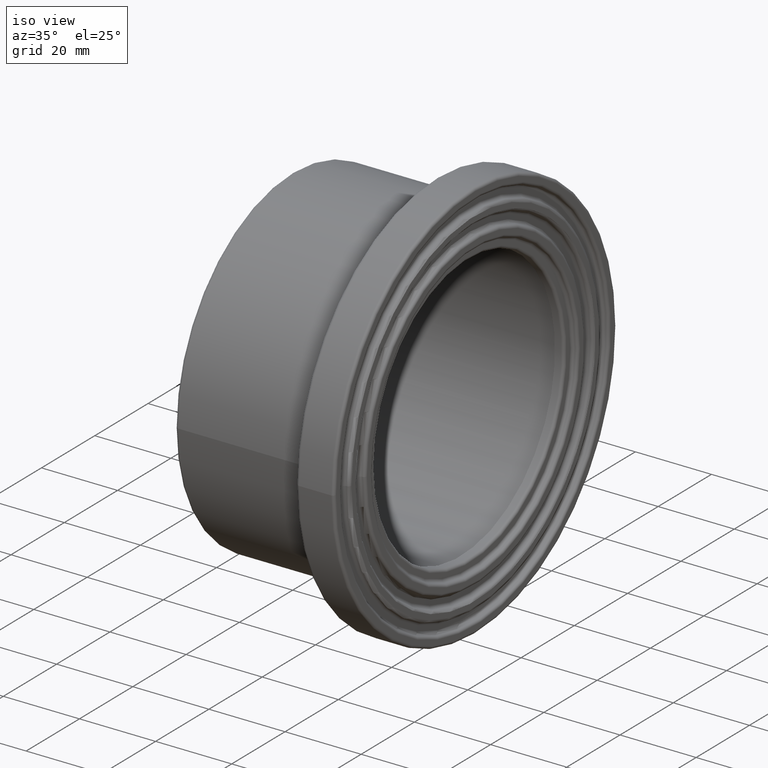
[diagram: clean part render]
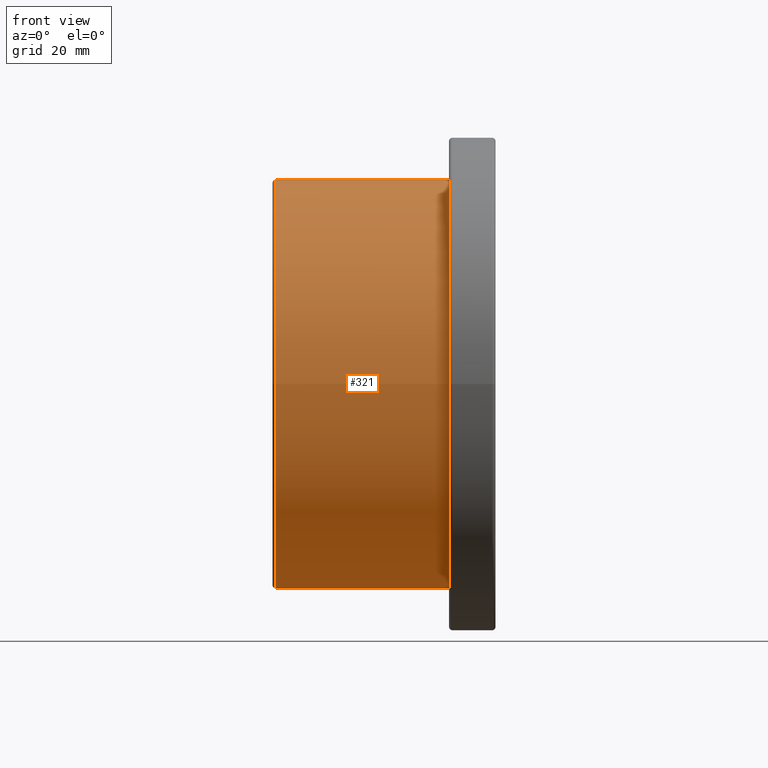
[diagram: tour spotlight — one face highlighted and labeled with its STEP entity id]
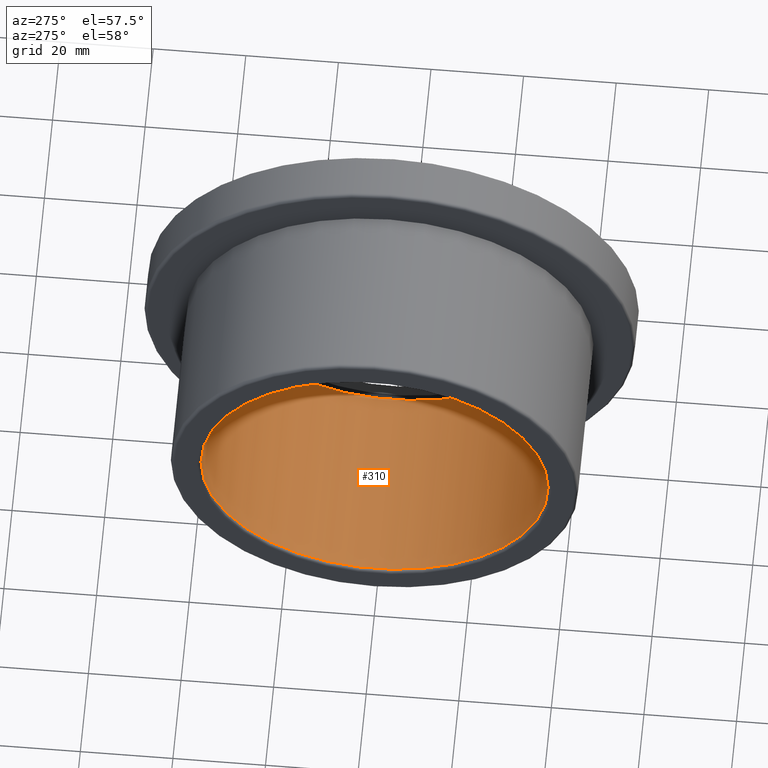
[diagram: tour spotlight — one face highlighted and labeled with its STEP entity id]
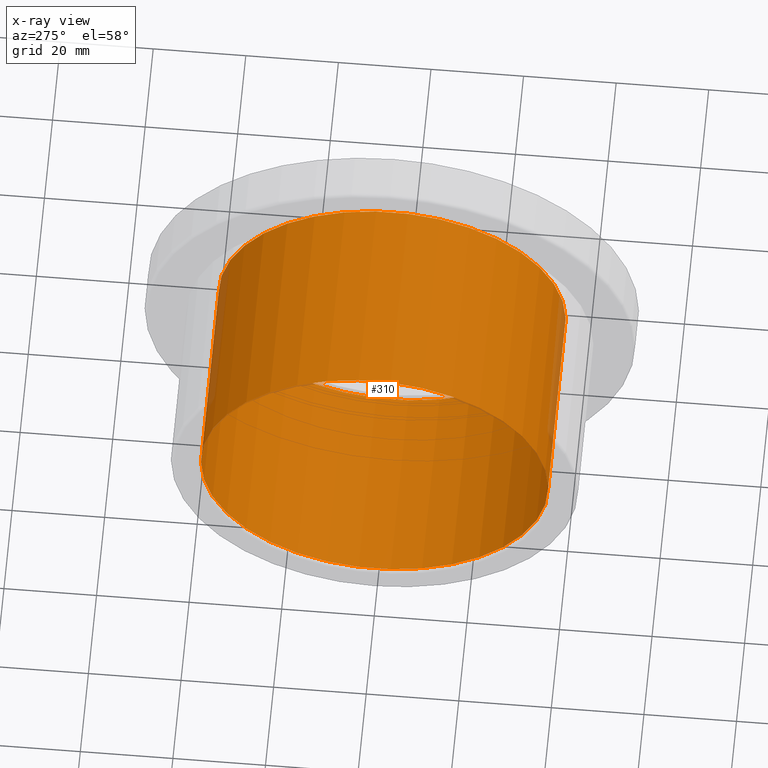
[diagram: x-ray of the same camera — body ghosted, this tour face saturated]
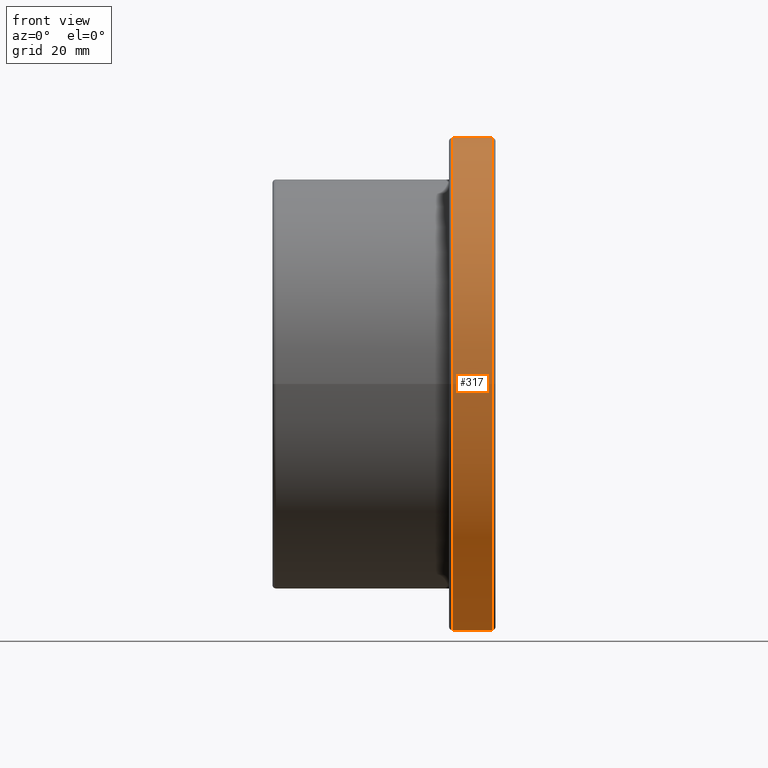
[diagram: tour spotlight — one face highlighted and labeled with its STEP entity id]
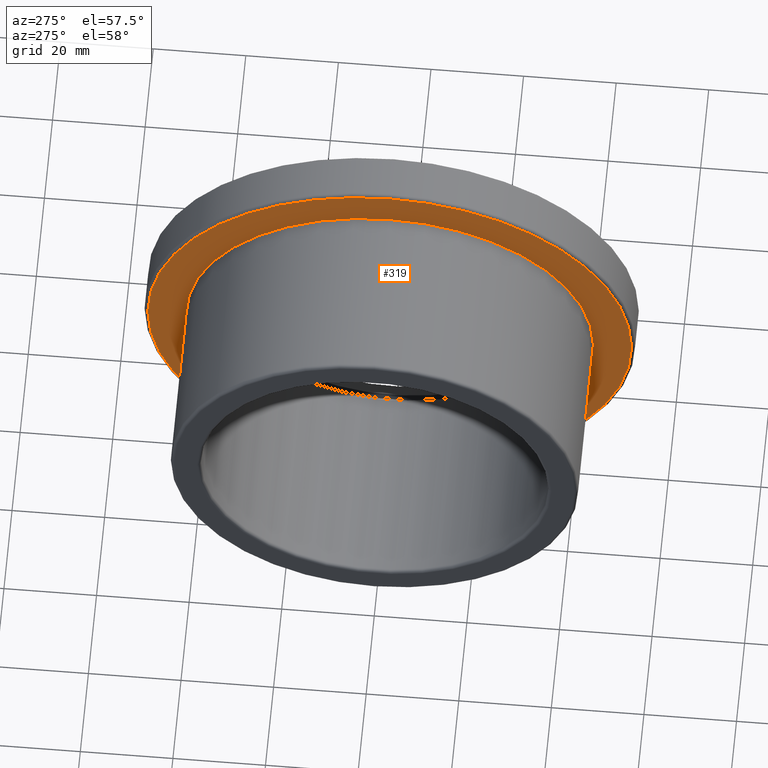
[diagram: tour spotlight — one face highlighted and labeled with its STEP entity id]
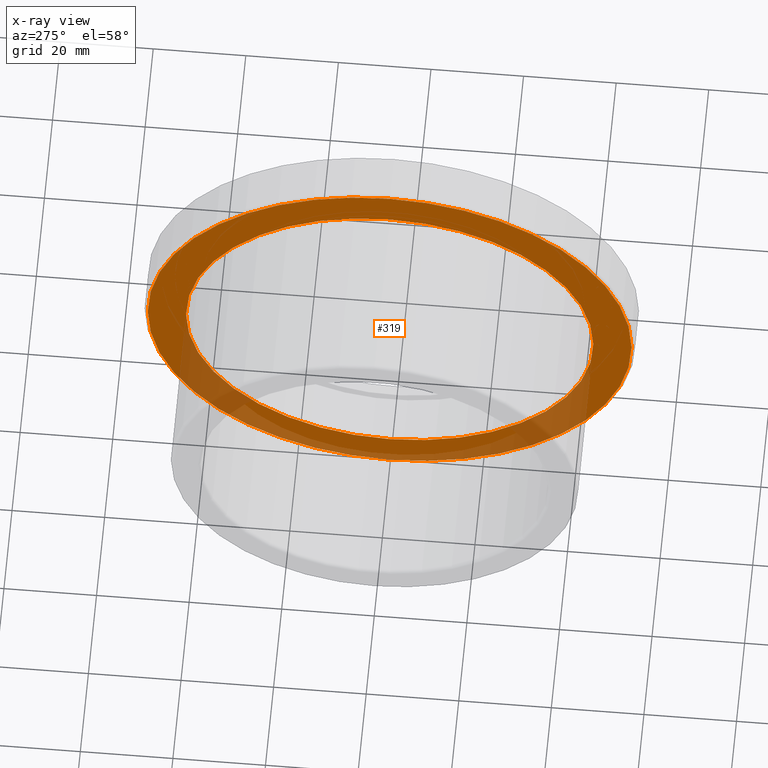
[diagram: x-ray of the same camera — body ghosted, this tour face saturated]
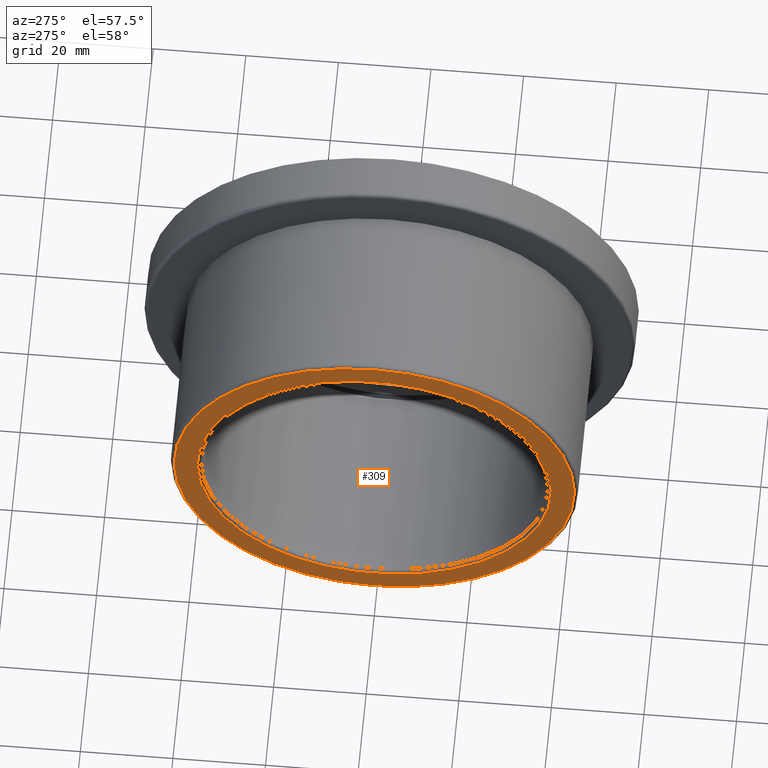
[diagram: tour spotlight — one face highlighted and labeled with its STEP entity id]
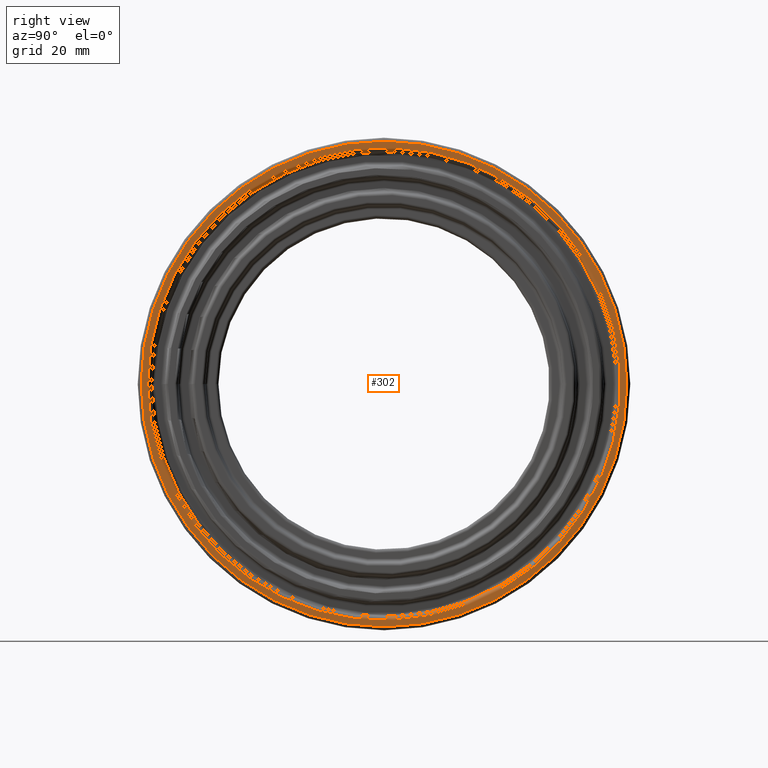
[diagram: tour spotlight — one face highlighted and labeled with its STEP entity id]
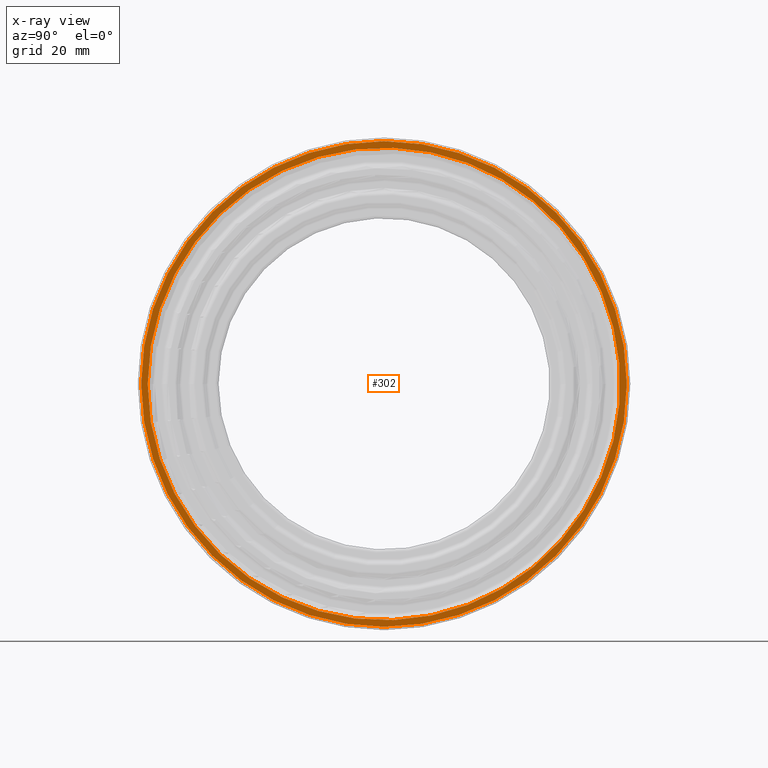
[diagram: x-ray of the same camera — body ghosted, this tour face saturated]
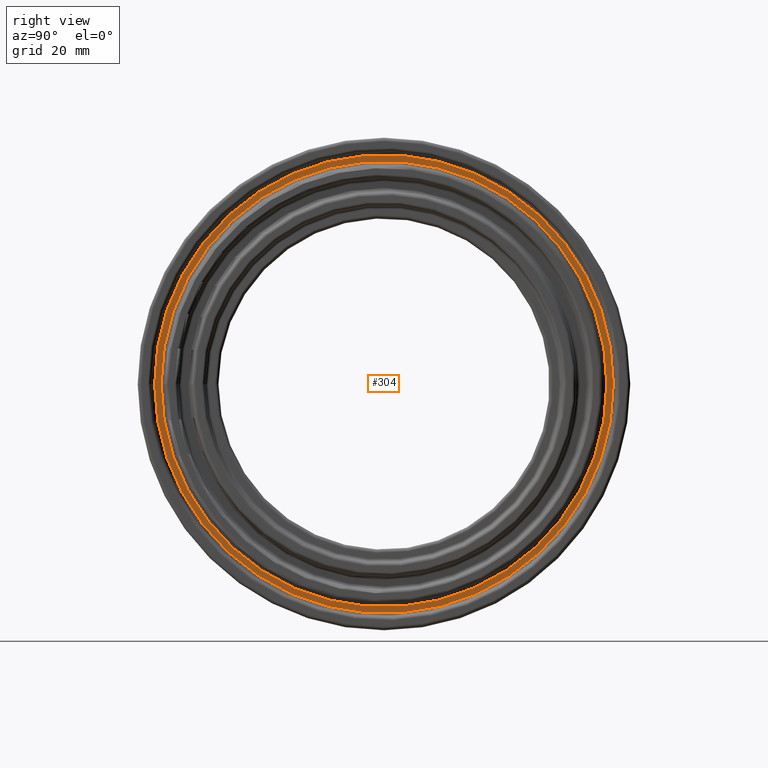
[diagram: tour spotlight — one face highlighted and labeled with its STEP entity id]
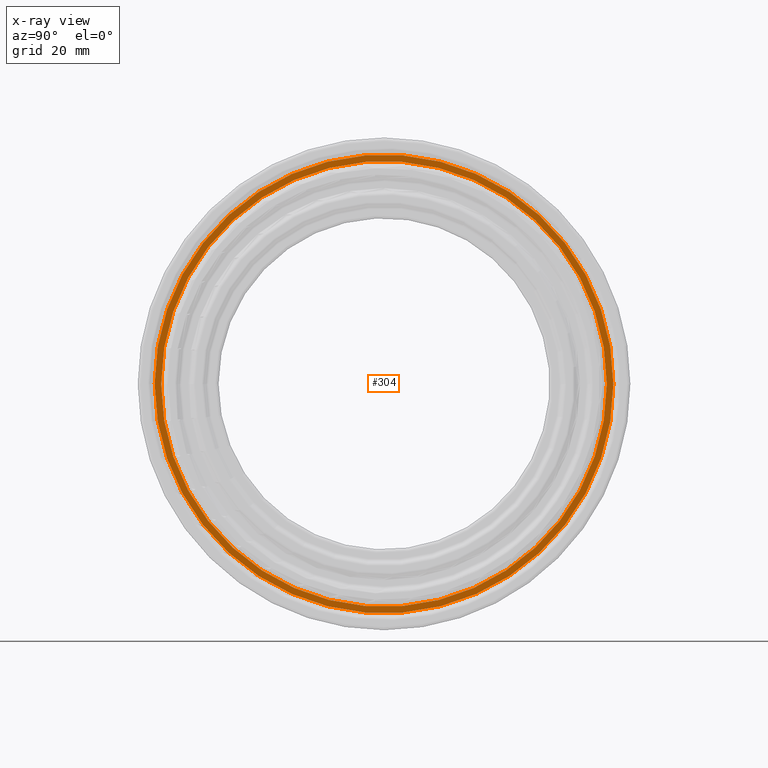
[diagram: x-ray of the same camera — body ghosted, this tour face saturated]
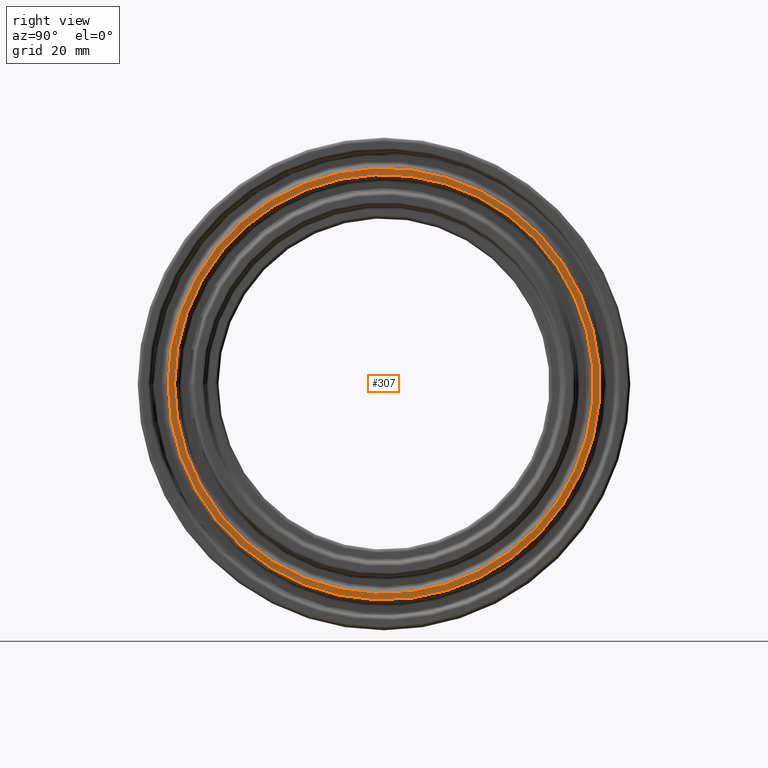
[diagram: tour spotlight — one face highlighted and labeled with its STEP entity id]
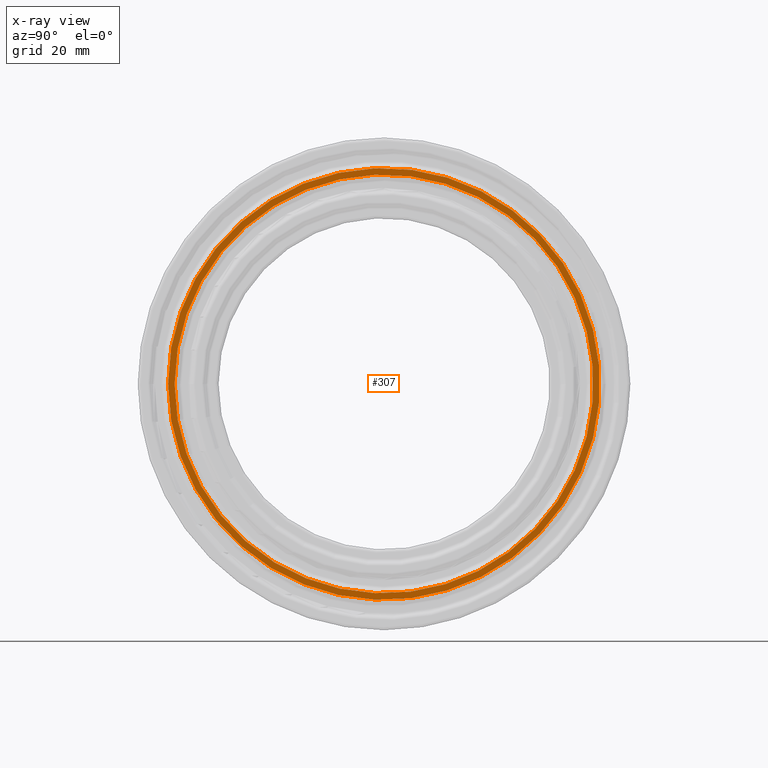
[diagram: x-ray of the same camera — body ghosted, this tour face saturated]
A machine part: a face-by-face anatomy tour. The part has 28 B-rep faces; the first image is the clean iso view, then the 8 largest visible faces are spotlighted one at a time (largest first), each with its STEP entity span.

Face 1 — front view, entity #321. In plain terms, the highlighted cylindrical surface (bore or boss wall) has radius 44 mm, axis along (-1, 0, 0).
Definition (entity closure, byte-faithful):
#18=CYLINDRICAL_SURFACE('',#379,44.);
#54=FACE_BOUND('',#137,.T.);
#82=FACE_OUTER_BOUND('',#136,.T.);
#136=EDGE_LOOP('',(#276));
#137=EDGE_LOOP('',(#277));
#166=CIRCLE('',#376,44.);
#167=CIRCLE('',#378,44.);
#194=VERTEX_POINT('',#573);
#195=VERTEX_POINT('',#576);
#222=EDGE_CURVE('',#194,#194,#166,.T.);
#223=EDGE_CURVE('',#195,#195,#167,.T.);
#276=ORIENTED_EDGE('',*,*,#222,.T.);
#277=ORIENTED_EDGE('',*,*,#223,.F.);
#321=ADVANCED_FACE('',(#82,#54),#18,.T.);
#376=AXIS2_PLACEMENT_3D('',#574,#485,#486);
#378=AXIS2_PLACEMENT_3D('',#577,#489,#490);
#379=AXIS2_PLACEMENT_3D('',#578,#491,#492);
#485=DIRECTION('center_axis',(-1.,0.,0.));
#486=DIRECTION('ref_axis',(0.,0.,1.));
#489=DIRECTION('center_axis',(-1.,0.,0.));
#490=DIRECTION('ref_axis',(0.,1.,6.12323399573677E-17));
#491=DIRECTION('center_axis',(-1.,0.,0.));
#492=DIRECTION('ref_axis',(0.,-1.,0.));
#573=CARTESIAN_POINT('',(38.,-44.,0.));
#574=CARTESIAN_POINT('Origin',(38.,0.,0.));
#576=CARTESIAN_POINT('',(0.75,-44.,2.69422295812418E-15));
#577=CARTESIAN_POINT('Origin',(0.75,0.,0.));
#578=CARTESIAN_POINT('Origin',(19.,0.,0.));

Face 2 — auxiliary view, entity #310. An x-ray twin of the same camera follows (body ghosted, this face saturated) — the face is partly hidden behind the body. In plain terms, the highlighted cylindrical surface (bore or boss wall) has radius 37.5 mm, axis along (-1, 0, 0).
Definition (entity closure, byte-faithful):
#16=CYLINDRICAL_SURFACE('',#358,37.5);
#43=FACE_BOUND('',#115,.T.);
#71=FACE_OUTER_BOUND('',#114,.T.);
#114=EDGE_LOOP('',(#254));
#115=EDGE_LOOP('',(#255));
#156=CIRCLE('',#355,37.5);
#158=CIRCLE('',#359,37.5);
#184=VERTEX_POINT('',#542);
#186=VERTEX_POINT('',#548);
#212=EDGE_CURVE('',#184,#184,#156,.T.);
#214=EDGE_CURVE('',#186,#186,#158,.T.);
#254=ORIENTED_EDGE('',*,*,#214,.F.);
#255=ORIENTED_EDGE('',*,*,#212,.F.);
#310=ADVANCED_FACE('',(#71,#43),#16,.F.);
#355=AXIS2_PLACEMENT_3D('',#543,#443,#444);
#358=AXIS2_PLACEMENT_3D('',#547,#449,#450);
#359=AXIS2_PLACEMENT_3D('',#549,#451,#452);
#443=DIRECTION('center_axis',(1.,0.,0.));
#444=DIRECTION('ref_axis',(0.,1.,6.12323399573677E-17));
#449=DIRECTION('center_axis',(-1.,0.,0.));
#450=DIRECTION('ref_axis',(0.,-1.,0.));
#451=DIRECTION('center_axis',(-1.,0.,0.));
#452=DIRECTION('ref_axis',(0.,0.,1.));
#542=CARTESIAN_POINT('',(0.750000000000002,-37.5,-6.88863824520386E-15));
#543=CARTESIAN_POINT('Origin',(0.750000000000002,0.,0.));
#547=CARTESIAN_POINT('Origin',(22.,0.,0.));
#548=CARTESIAN_POINT('',(44.,-37.5,0.));
#549=CARTESIAN_POINT('Origin',(44.,0.,0.));

Face 3 — front view, entity #317. In plain terms, the highlighted cylindrical surface (bore or boss wall) has radius 53 mm, axis along (-1, 0, 0).
Definition (entity closure, byte-faithful):
#17=CYLINDRICAL_SURFACE('',#371,53.);
#50=FACE_BOUND('',#129,.T.);
#78=FACE_OUTER_BOUND('',#128,.T.);
#128=EDGE_LOOP('',(#268));
#129=EDGE_LOOP('',(#269));
#163=CIRCLE('',#370,53.);
#164=CIRCLE('',#372,53.);
#191=VERTEX_POINT('',#564);
#192=VERTEX_POINT('',#567);
#219=EDGE_CURVE('',#191,#191,#163,.T.);
#220=EDGE_CURVE('',#192,#192,#164,.T.);
#268=ORIENTED_EDGE('',*,*,#220,.F.);
#269=ORIENTED_EDGE('',*,*,#219,.F.);
#317=ADVANCED_FACE('',(#78,#50),#17,.T.);
#370=AXIS2_PLACEMENT_3D('',#565,#473,#474);
#371=AXIS2_PLACEMENT_3D('',#566,#475,#476);
#372=AXIS2_PLACEMENT_3D('',#568,#477,#478);
#473=DIRECTION('center_axis',(1.,0.,0.));
#474=DIRECTION('ref_axis',(0.,1.,6.12323399573677E-17));
#475=DIRECTION('center_axis',(-1.,0.,0.));
#476=DIRECTION('ref_axis',(0.,-1.,0.));
#477=DIRECTION('center_axis',(-1.,0.,0.));
#478=DIRECTION('ref_axis',(0.,1.,6.12323399573677E-17));
#564=CARTESIAN_POINT('',(47.25,-53.,-9.73594205322146E-15));
#565=CARTESIAN_POINT('Origin',(47.25,0.,0.));
#566=CARTESIAN_POINT('Origin',(43.,0.,0.));
#567=CARTESIAN_POINT('',(38.75,-53.,3.24531401774049E-15));
#568=CARTESIAN_POINT('Origin',(38.75,0.,0.));

Face 4 — auxiliary view, entity #319. An x-ray twin of the same camera follows (body ghosted, this face saturated) — the face is partly hidden behind the body. In plain terms, the highlighted planar face has unit normal (-1, 0, 0).
Definition (entity closure, byte-faithful):
#26=PLANE('',#375);
#52=FACE_BOUND('',#133,.T.);
#80=FACE_OUTER_BOUND('',#132,.T.);
#132=EDGE_LOOP('',(#272));
#133=EDGE_LOOP('',(#273));
#165=CIRCLE('',#374,52.25);
#166=CIRCLE('',#376,44.);
#193=VERTEX_POINT('',#570);
#194=VERTEX_POINT('',#573);
#221=EDGE_CURVE('',#193,#193,#165,.T.);
#222=EDGE_CURVE('',#194,#194,#166,.T.);
#272=ORIENTED_EDGE('',*,*,#221,.F.);
#273=ORIENTED_EDGE('',*,*,#222,.F.);
#319=ADVANCED_FACE('',(#80,#52),#26,.T.);
#374=AXIS2_PLACEMENT_3D('',#571,#481,#482);
#375=AXIS2_PLACEMENT_3D('',#572,#483,#484);
#376=AXIS2_PLACEMENT_3D('',#574,#485,#486);
#481=DIRECTION('center_axis',(1.,0.,0.));
#482=DIRECTION('ref_axis',(0.,1.,6.12323399573677E-17));
#483=DIRECTION('center_axis',(-1.,0.,0.));
#484=DIRECTION('ref_axis',(0.,0.,1.));
#485=DIRECTION('center_axis',(-1.,0.,0.));
#486=DIRECTION('ref_axis',(0.,0.,1.));
#570=CARTESIAN_POINT('',(38.,-52.25,-9.59816928831738E-15));
#571=CARTESIAN_POINT('Origin',(38.,0.,0.));
#572=CARTESIAN_POINT('Origin',(38.,-44.,0.));
#573=CARTESIAN_POINT('',(38.,-44.,0.));
#574=CARTESIAN_POINT('Origin',(38.,0.,0.));

Face 5 — auxiliary view, entity #309. In plain terms, the highlighted planar face has unit normal (-1, 0, 0).
Definition (entity closure, byte-faithful):
#24=PLANE('',#356);
#42=FACE_BOUND('',#113,.T.);
#70=FACE_OUTER_BOUND('',#112,.T.);
#112=EDGE_LOOP('',(#252));
#113=EDGE_LOOP('',(#253));
#155=CIRCLE('',#354,38.25);
#157=CIRCLE('',#357,43.25);
#183=VERTEX_POINT('',#540);
#185=VERTEX_POINT('',#545);
#211=EDGE_CURVE('',#183,#183,#155,.T.);
#213=EDGE_CURVE('',#185,#185,#157,.T.);
#252=ORIENTED_EDGE('',*,*,#213,.F.);
#253=ORIENTED_EDGE('',*,*,#211,.F.);
#309=ADVANCED_FACE('',(#70,#42),#24,.T.);
#354=AXIS2_PLACEMENT_3D('',#541,#441,#442);
#356=AXIS2_PLACEMENT_3D('',#544,#445,#446);
#357=AXIS2_PLACEMENT_3D('',#546,#447,#448);
#441=DIRECTION('center_axis',(-1.,0.,0.));
#442=DIRECTION('ref_axis',(0.,1.,6.12323399573677E-17));
#445=DIRECTION('center_axis',(-1.,0.,0.));
#446=DIRECTION('ref_axis',(0.,0.,1.));
#447=DIRECTION('center_axis',(1.,0.,0.));
#448=DIRECTION('ref_axis',(0.,1.,6.12323399573677E-17));
#540=CARTESIAN_POINT('',(0.,-38.25,2.34213700336931E-15));
#541=CARTESIAN_POINT('Origin',(0.,0.,0.));
#544=CARTESIAN_POINT('Origin',(0.,-37.5,0.));
#545=CARTESIAN_POINT('',(0.,-43.25,-7.94489610946845E-15));
#546=CARTESIAN_POINT('Origin',(0.,0.,0.));

Face 6 — right view, entity #302. An x-ray twin of the same camera follows (body ghosted, this face saturated) — the face is partly hidden behind the body. In plain terms, the highlighted planar face has unit normal (1, 0, 0).
Definition (entity closure, byte-faithful):
#21=PLANE('',#341);
#35=FACE_BOUND('',#99,.T.);
#63=FACE_OUTER_BOUND('',#98,.T.);
#98=EDGE_LOOP('',(#238));
#99=EDGE_LOOP('',(#239));
#148=CIRCLE('',#340,50.8541666666667);
#149=CIRCLE('',#342,52.25);
#176=VERTEX_POINT('',#519);
#177=VERTEX_POINT('',#522);
#204=EDGE_CURVE('',#176,#176,#148,.T.);
#205=EDGE_CURVE('',#177,#177,#149,.T.);
#238=ORIENTED_EDGE('',*,*,#205,.F.);
#239=ORIENTED_EDGE('',*,*,#204,.F.);
#302=ADVANCED_FACE('',(#63,#35),#21,.T.);
#340=AXIS2_PLACEMENT_3D('',#520,#413,#414);
#341=AXIS2_PLACEMENT_3D('',#521,#415,#416);
#342=AXIS2_PLACEMENT_3D('',#523,#417,#418);
#413=DIRECTION('center_axis',(1.,0.,0.));
#414=DIRECTION('ref_axis',(0.,1.,6.12323399573677E-17));
#415=DIRECTION('center_axis',(1.,0.,0.));
#416=DIRECTION('ref_axis',(0.,0.,-1.));
#417=DIRECTION('center_axis',(-1.,0.,0.));
#418=DIRECTION('ref_axis',(0.,1.,6.12323399573677E-17));
#519=CARTESIAN_POINT('',(48.,-50.8541666666667,-9.34175886474591E-15));
#520=CARTESIAN_POINT('Origin',(48.,0.,0.));
#521=CARTESIAN_POINT('Origin',(48.,-53.,0.));
#522=CARTESIAN_POINT('',(48.,-52.25,3.19938976277246E-15));
#523=CARTESIAN_POINT('Origin',(48.,0.,0.));

Face 7 — right view, entity #304. An x-ray twin of the same camera follows (body ghosted, this face saturated) — the face is partly hidden behind the body. In plain terms, the highlighted planar face has unit normal (1, 0, 0).
Definition (entity closure, byte-faithful):
#22=PLANE('',#345);
#37=FACE_BOUND('',#103,.T.);
#65=FACE_OUTER_BOUND('',#102,.T.);
#102=EDGE_LOOP('',(#242));
#103=EDGE_LOOP('',(#243));
#150=CIRCLE('',#344,49.3541666666667);
#151=CIRCLE('',#346,47.9583333333333);
#178=VERTEX_POINT('',#525);
#179=VERTEX_POINT('',#528);
#206=EDGE_CURVE('',#178,#178,#150,.T.);
#207=EDGE_CURVE('',#179,#179,#151,.T.);
#242=ORIENTED_EDGE('',*,*,#206,.F.);
#243=ORIENTED_EDGE('',*,*,#207,.F.);
#304=ADVANCED_FACE('',(#65,#37),#22,.T.);
#344=AXIS2_PLACEMENT_3D('',#526,#421,#422);
#345=AXIS2_PLACEMENT_3D('',#527,#423,#424);
#346=AXIS2_PLACEMENT_3D('',#529,#425,#426);
#421=DIRECTION('center_axis',(-1.,0.,0.));
#422=DIRECTION('ref_axis',(0.,1.,6.12323399573677E-17));
#423=DIRECTION('center_axis',(1.,0.,0.));
#424=DIRECTION('ref_axis',(0.,0.,-1.));
#425=DIRECTION('center_axis',(1.,0.,0.));
#426=DIRECTION('ref_axis',(0.,1.,6.12323399573677E-17));
#525=CARTESIAN_POINT('',(46.5,-49.3541666666667,3.02207111164592E-15));
#526=CARTESIAN_POINT('Origin',(46.5,0.,0.));
#527=CARTESIAN_POINT('Origin',(46.5,-50.1041666666667,0.));
#528=CARTESIAN_POINT('',(46.5,-47.9583333333333,-8.80980291136627E-15));
#529=CARTESIAN_POINT('Origin',(46.5,0.,0.));

Face 8 — right view, entity #307. An x-ray twin of the same camera follows (body ghosted, this face saturated) — the face is partly hidden behind the body. In plain terms, the highlighted planar face has unit normal (1, 0, 0).
Definition (entity closure, byte-faithful):
#23=PLANE('',#351);
#40=FACE_BOUND('',#109,.T.);
#68=FACE_OUTER_BOUND('',#108,.T.);
#108=EDGE_LOOP('',(#248));
#109=EDGE_LOOP('',(#249));
#153=CIRCLE('',#350,46.4583333333333);
#154=CIRCLE('',#352,45.0625);
#181=VERTEX_POINT('',#534);
#182=VERTEX_POINT('',#537);
#209=EDGE_CURVE('',#181,#181,#153,.T.);
#210=EDGE_CURVE('',#182,#182,#154,.T.);
#248=ORIENTED_EDGE('',*,*,#209,.F.);
#249=ORIENTED_EDGE('',*,*,#210,.F.);
#307=ADVANCED_FACE('',(#68,#40),#23,.T.);
#350=AXIS2_PLACEMENT_3D('',#535,#433,#434);
#351=AXIS2_PLACEMENT_3D('',#536,#435,#436);
#352=AXIS2_PLACEMENT_3D('',#538,#437,#438);
#433=DIRECTION('center_axis',(-1.,0.,0.));
#434=DIRECTION('ref_axis',(0.,1.,6.12323399573677E-17));
#435=DIRECTION('center_axis',(1.,0.,0.));
#436=DIRECTION('ref_axis',(0.,0.,-1.));
#437=DIRECTION('center_axis',(1.,0.,0.));
#438=DIRECTION('ref_axis',(0.,1.,6.12323399573676E-17));
#534=CARTESIAN_POINT('',(48.,-46.4583333333333,2.84475246051937E-15));
#535=CARTESIAN_POINT('Origin',(48.,0.,0.));
#536=CARTESIAN_POINT('Origin',(48.,-47.2083333333333,0.));
#537=CARTESIAN_POINT('',(48.,-45.0625,-8.27784695798664E-15));
#538=CARTESIAN_POINT('Origin',(48.,0.,0.));